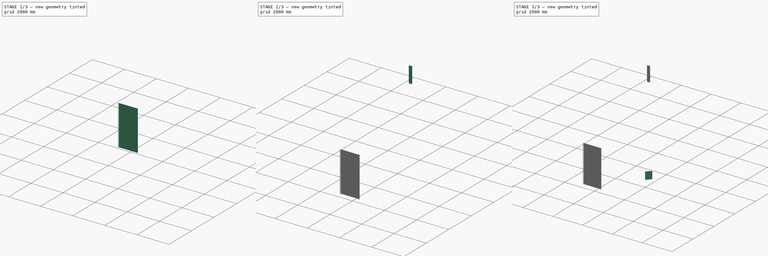
[diagram: build sequence overview — one tinted view per stage of 3, left to right]
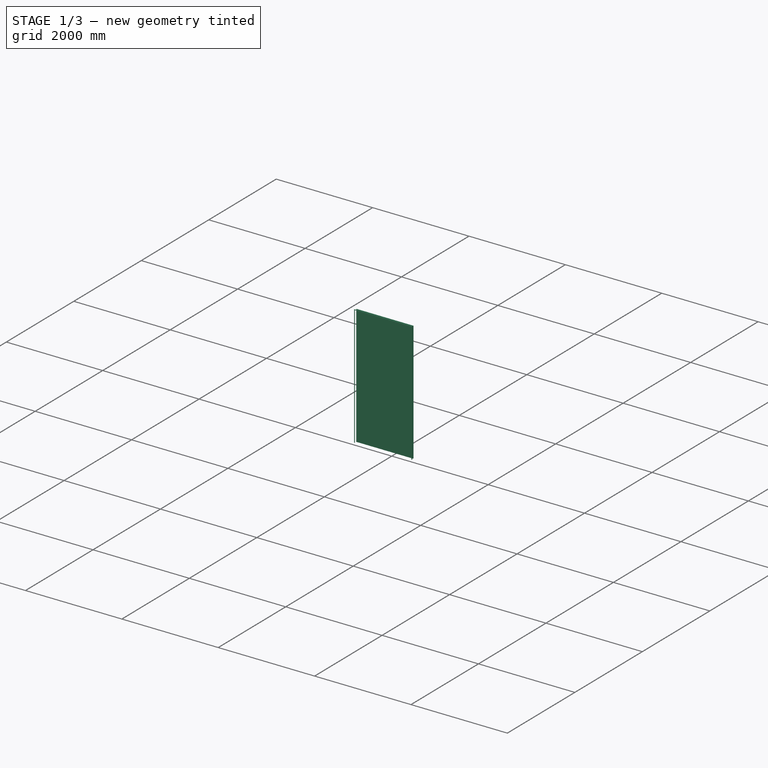
[diagram: stage 1 of 3 — iso view after this stage's code; geometry added in this stage tinted green]
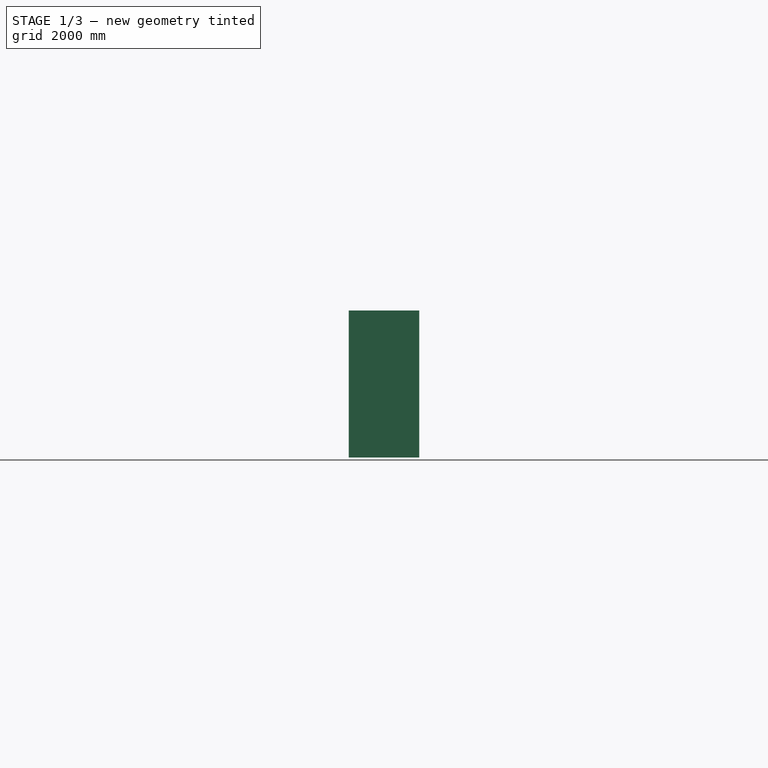
[diagram: stage 1 of 3 — front view after this stage's code; geometry added in this stage tinted green]
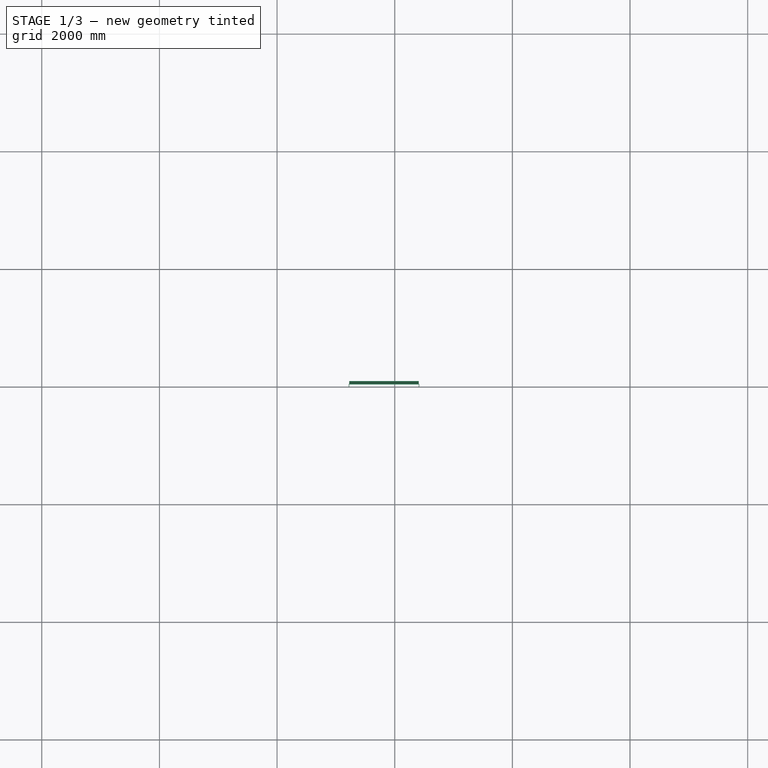
[diagram: stage 1 of 3 — top view after this stage's code; geometry added in this stage tinted green]
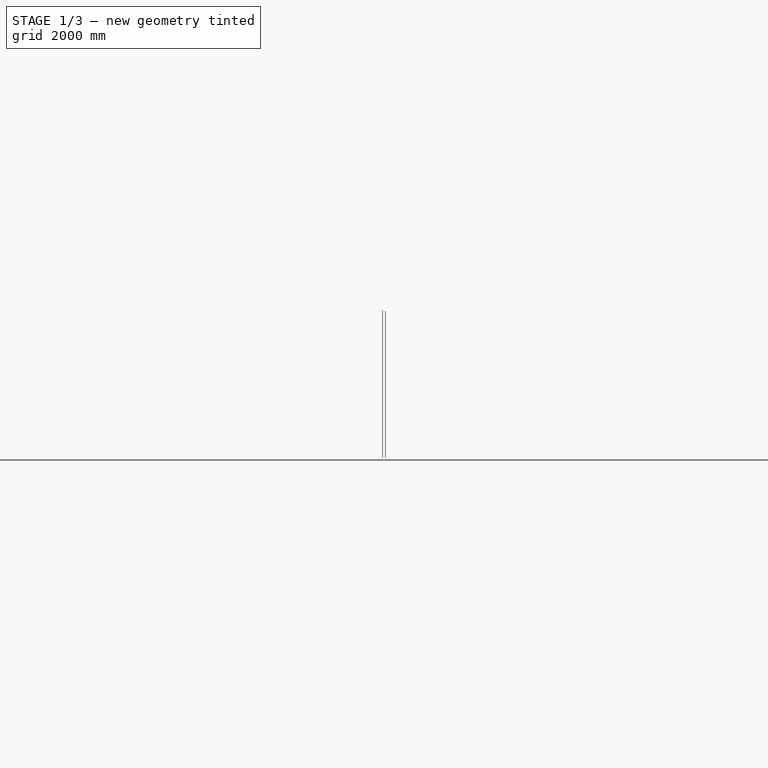
[diagram: stage 1 of 3 — right view after this stage's code; geometry added in this stage tinted green]
FCSTD DOCUMENT  (FreeCAD 0.22R36526 (Git))
Label: window_demo
License: All rights reserved
LicenseURL: https://en.wikipedia.org/wiki/All_rights_reserved
objects: Sketcher::SketchObject×11, Part::FeaturePython×6, App::DocumentObjectGroup×2, Spreadsheet::Sheet×1
note: 17 computed .brp shape members not serialized (recipe doc carries the construction recipe); baked Part::Feature solids carry a one-line shape summary decoded from their .brp

FEATURE [Sketcher::SketchObject] Sketch  label="masterlayout"
  FullyConstrained = false
  sketch-geometry (6):
    g0: LineSegment StartX=0 StartY=0 StartZ=0 EndX=4717.66 EndY=0 EndZ=0
    g1: LineSegment StartX=4717.66 StartY=0 StartZ=0 EndX=8043.77 EndY=3599.89 EndZ=0
    g2: LineSegment StartX=8043.77 StartY=3599.89 StartZ=0 EndX=8043.77 EndY=11196.8 EndZ=0
    g3: LineSegment StartX=8043.77 StartY=11196.8 StartZ=0 EndX=-3326.11 EndY=11196.8 EndZ=0
    g4: LineSegment StartX=-3326.11 StartY=11196.8 StartZ=0 EndX=-3326.11 EndY=3599.89 EndZ=0
    g5: LineSegment StartX=-3326.11 StartY=3599.89 StartZ=0 EndX=0 EndY=0 EndZ=0
  constraints (13):
    c: Coincident(g0,g-1)
    c: Horizontal(g0)
    c: Coincident(g1,g0)
    c: Coincident(g2,g1)
    c: Vertical(g2)
    c: Coincident(g3,g2)
    c: Horizontal(g3)
    c: Coincident(g4,g3)
    c: Vertical(g4)
    c: Coincident(g5,g4)
    c: Coincident(g5,g0)
    c: Equal(g1,g5)
    c: Equal(g4,g2)
FEATURE [Sketcher::SketchObject] Sketch001  label="wall_based_on_master"
  ExternalGeometry = -> [Sketch]
  FullyConstrained = true
  MapMode = 2
  sketch-geometry (1):
    g0: LineSegment StartX=0 StartY=0 StartZ=0 EndX=4717.66 EndY=0 EndZ=0
  constraints (2):
    c: Coincident(g0,g-3)
    c: Coincident(g0,g-3)
FEATURE [Part::FeaturePython] Wall  label="front_wall"  # Arch/BIM 166 (typed FeaturePython)
  Align = 2
  Area = 1.4153e+07
  Base = -> Sketch001
  BlockHeight = 0
  BlockLength = 0
  CountBroken = 0
  CountEntire = 0
  Face = 0
  Height = 3000
  HorizontalArea = 943532
  IfcData = attributes={"GlobalId": {"name": "GlobalId", "type": "IfcGloballyUniqueId", "is_enum": false, "enum_values": []}, "Description": {"... (+533 chars omitted),+1 more (map truncated)
  IfcType = 166
  Joint = 0
  Length = 4717.66
  MakeBlocks = false
  MoveBase = false
  MoveWithHost = false
  Normal = (0,0,1)
  OffsetFirst = 0
  OffsetSecond = 0
  PerimeterLength = 9835.32
  PredefinedType = 0
  VerticalArea = 2.4506e+07
  Width = 200
FEATURE [Sketcher::SketchObject] Sketch068
  FullyConstrained = true
  Placement = pos=(3217.66,0,0) rot=(1,0,0;1.5708rad)
  sketch-geometry (8):
    g0: LineSegment StartX=0 StartY=0 StartZ=0 EndX=1200 EndY=0 EndZ=0
    g1: LineSegment StartX=1200 StartY=0 StartZ=0 EndX=1200 EndY=2500 EndZ=0
    g2: LineSegment StartX=1200 StartY=2500 StartZ=0 EndX=0 EndY=2500 EndZ=0
    g3: LineSegment StartX=0 StartY=2500 StartZ=0 EndX=0 EndY=0 EndZ=0
    g4: LineSegment StartX=10 StartY=0 StartZ=0 EndX=1190 EndY=0 EndZ=0
    g5: LineSegment StartX=1190 StartY=0 StartZ=0 EndX=1190 EndY=2490 EndZ=0
    g6: LineSegment StartX=1190 StartY=2490 StartZ=0 EndX=10 EndY=2490 EndZ=0
    g7: LineSegment StartX=10 StartY=2490 StartZ=0 EndX=10 EndY=0 EndZ=0
  constraints (23):
    c: Coincident(g0,g1)
    c: Coincident(g1,g2)
    c: Coincident(g2,g3)
    c: Coincident(g3,g0)
    c: Horizontal(g0)
    c: Horizontal(g2)
    c: Vertical(g1)
    c: Vertical(g3)
    c: Coincident(g4,g5)
    c: Coincident(g5,g6)
    c: Coincident(g6,g7)
    c: Coincident(g7,g4)
    c: Horizontal(g4)
    c: Horizontal(g6)
    c: Vertical(g5)
    c: Vertical(g7)
    c: DistanceY(g1) = 2500  'Height'
    c: DistanceX(g0) = 1200  'Width'
    c: DistanceY(g6,g2) = 10  'Frame1'
    c: DistanceX(g2,g6) = 10  'Frame2'
    c: DistanceX(g4,g0) = 10  'Frame3'
    c: DistanceY(g0,g4) = 0
    c: Coincident(g0,g-1)
FEATURE [Part::FeaturePython] Window010  label="gen_op_front_wall_1"  # Arch/BIM 41 (typed FeaturePython)
  Area = 3000000
  Base = -> Sketch068
  Frame = 10
  Height = 2500
  HoleDepth = 0
  HoleWire = 0
  HorizontalArea = 0
  Hosts = -> [Wall]
  IfcData = attributes={"GlobalId": {"name": "GlobalId", "type": "IfcGloballyUniqueId", "is_enum": false, "enum_values": []}, "Description": {"... (+1934 chars omitted),+1 more (map truncated)
  IfcType = 41
  LouvreSpacing = 0
  LouvreWidth = 0
  MoveBase = false
  MoveWithHost = true
  Normal = (0,1,-2e-16)
  Opening = 0
  OperationType = 0
  OverallHeight = 2500
  OverallWidth = 1200
  PerimeterLength = 0
  PredefinedType = 0
  Preset = 6
  SymbolElevation = false
  SymbolPlan = false
  VerticalArea = 0
  Width = 1200
  WindowParts = OuterFrame | Frame | Wire0,Wire1 | 0.0+V | 0.00+V | Door | Solid panel | Wire1,Edge8,Mode1 | 10.0 | 50.0+V
  expr: OverallHeight = .Height.Value
  expr: OverallWidth = .Width.Value
FEATURE [App::DocumentObjectGroup] Group001  label="generated_openings"
  Group = -> [Window,Window009,Window010]
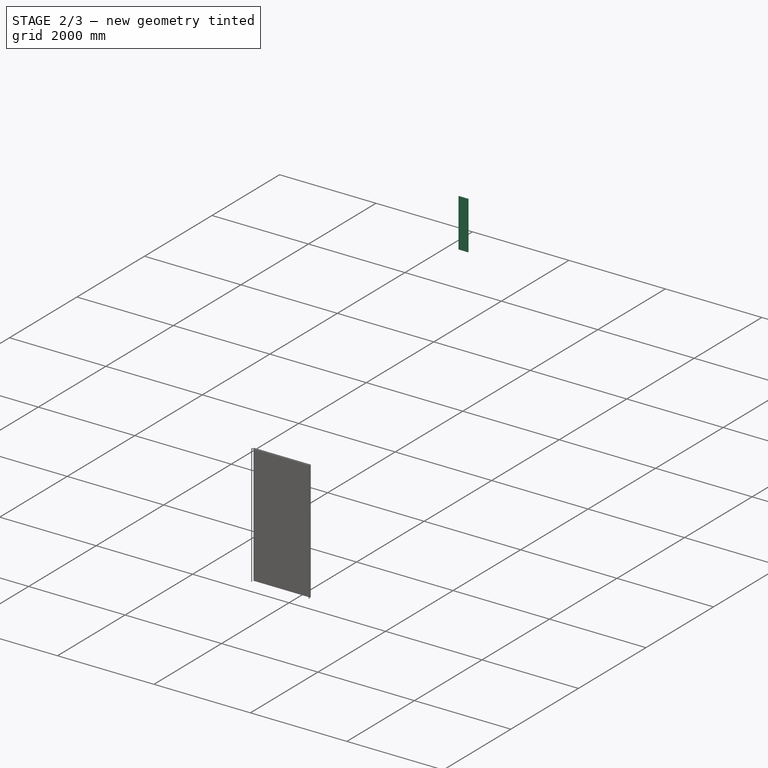
[diagram: stage 2 of 3 — iso view after this stage's code; geometry added in this stage tinted green]
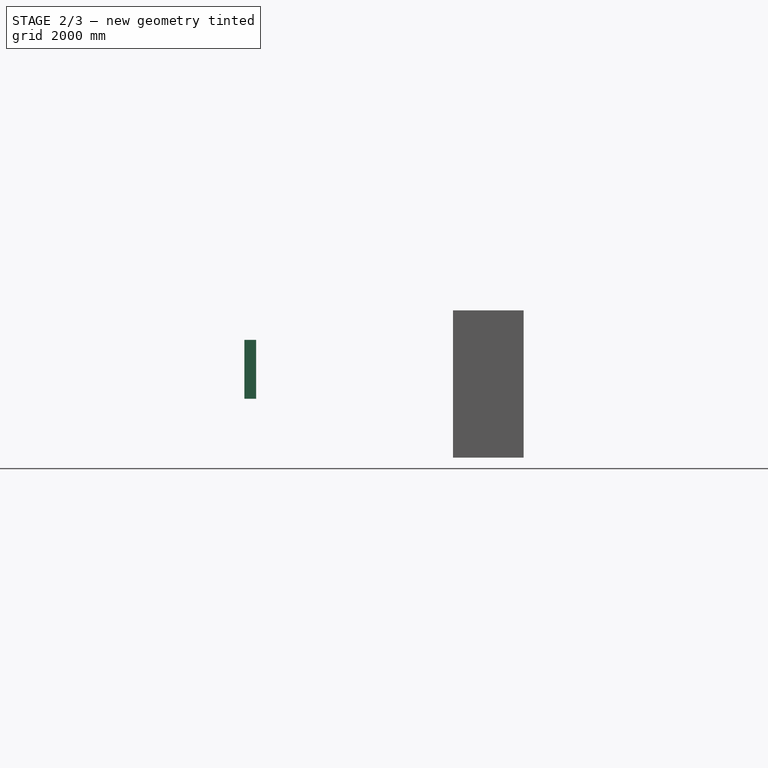
[diagram: stage 2 of 3 — front view after this stage's code; geometry added in this stage tinted green]
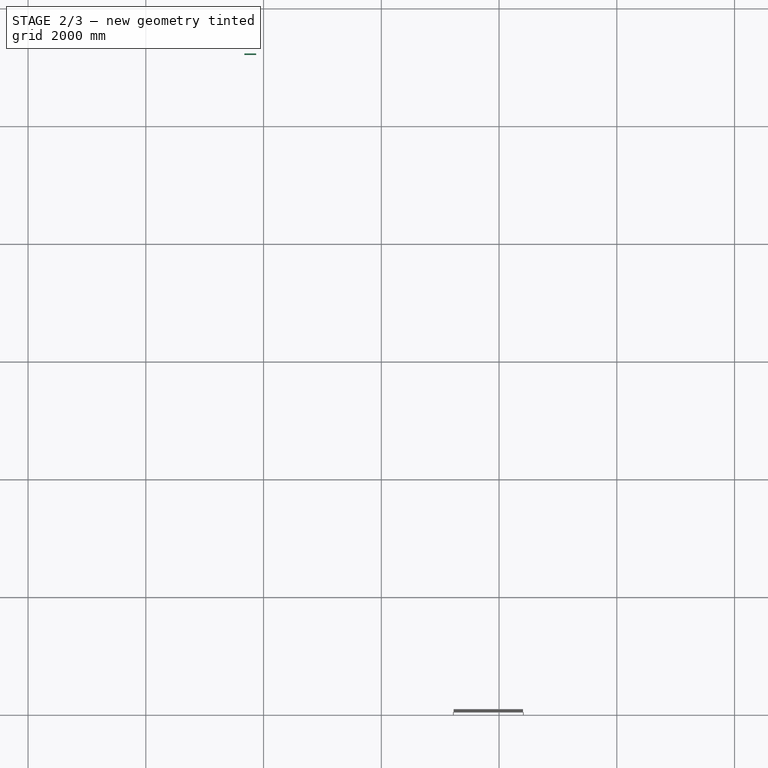
[diagram: stage 2 of 3 — top view after this stage's code; geometry added in this stage tinted green]
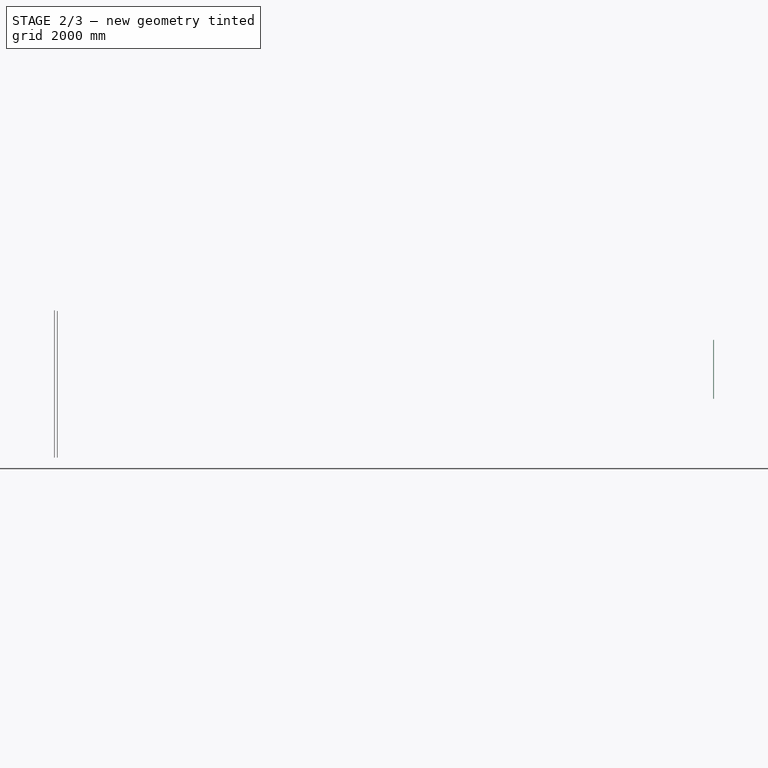
[diagram: stage 2 of 3 — right view after this stage's code; geometry added in this stage tinted green]
FEATURE [Sketcher::SketchObject] Sketch004  label="op_front_wall_1"
  ExternalGeometry = -> [Sketch001]
  FullyConstrained = true
  MapMode = 2
  expr: Constraints[5] = 0.5 * <<front_wall>>.Width
  sketch-geometry (3):
    g0: LineSegment StartX=4717.66 StartY=0 StartZ=0 EndX=3217.66 EndY=0 EndZ=0
    g1: LineSegment StartX=3217.66 StartY=0 StartZ=0 EndX=3217.66 EndY=-100 EndZ=0
    g2: GeomPoint X=3217.66 Y=-100 Z=0
  constraints (7):
    c: PointOnObject(g0,g-1)
    c: DistanceX(g0,g0) = 1500  'op_front_wall_1'
    c: Coincident(g1,g0)
    c: Vertical(g1)
    c: Coincident(g2,g1)
    c: DistanceY(g1,g1) = 100
    c: Coincident(g-3,g0)
FEATURE [Spreadsheet::Sheet] Spreadsheet  label="sc_openings"
  cells = A1='opening_name; B1='host_object; C1='z; D1='Preset; E1='Width; F1='Height; G1='h1; H1='h2; I1='h3; J1='w1; K1='w2; L1='o1; M1='o2; A2(op_front_wall_1)='op_front_wall_1; B2='front_wall; C2=0; D2='Simple door; E2==1200 mm; F2==2500 mm; G2==10 mm; H2==40 mm; I2==50 mm; J2==10 mm; K2==50 mm; L2==0 mm; M2==50 mm; A3(op_front_wall_2)='op_front_wall_2; C3=0; D3='Fixed; E3==400 mm; F3==500 mm; G3==10 mm; H3==40 mm; I3==50 mm; J3==10 mm; K3==50 mm; L3==0 mm; M3==50 mm; A4(op_back_wall_1)='op_back_wall_1; C4==1 m; D4='Fixed; E4==200 mm; F4==1000 mm; G4==10 mm; H4==40 mm; I4==50 mm; J4==10 mm; K4==50 mm; L4==0 mm; M4==50 mm; A5(op_diagonal)='op_diagonal; B5='diagonal_wall; C5==500 mm; D5='Fixed; E5==400 mm; F5==500 mm; G5==10 mm; H5==40 mm; I5==50 mm; J5==10 mm; K5==50 mm; L5==0 mm; M5==50 mm
FEATURE [Sketcher::SketchObject] Sketch008  label="op_front_wall_2"
  ExternalGeometry = -> [Sketch001]
  FullyConstrained = true
  expr: Constraints[5] = 0.5 * <<front_wall>>.Width
  sketch-geometry (3):
    g0: LineSegment StartX=4717.66 StartY=0 StartZ=0 EndX=717.661 EndY=0 EndZ=0
    g1: LineSegment StartX=717.661 StartY=0 StartZ=0 EndX=717.661 EndY=100 EndZ=0
    g2: GeomPoint X=717.661 Y=100 Z=0
  constraints (7):
    c: Coincident(g0,g-3)
    c: PointOnObject(g0,g-3)
    c: Coincident(g1,g0)
    c: Vertical(g1)
    c: DistanceX(g0,g0) = 4000
    c: Distance(g1,g1) = 100
    c: Coincident(g2,g1)
FEATURE [Sketcher::SketchObject] Sketch027  label="back_wall"
  ExternalGeometry = -> [Sketch]
  FullyConstrained = true
  sketch-geometry (3):
    g0: LineSegment StartX=-3326.11 StartY=11196.8 StartZ=0 EndX=8043.77 EndY=11196.8 EndZ=0
    g1: LineSegment StartX=8043.77 StartY=11196.8 StartZ=0 EndX=7043.77 EndY=11196.8 EndZ=0
    g2: LineSegment StartX=7043.77 StartY=11196.8 StartZ=0 EndX=4043.77 EndY=11196.8 EndZ=0
  constraints (8):
    c: Coincident(g0,g-3)
    c: Coincident(g0,g-3)
    c: Coincident(g1,g0)
    c: PointOnObject(g1,g0)
    c: Coincident(g2,g1)
    c: PointOnObject(g2,g0)
    c: DistanceX(g2,g2) = 3000  'op_back_wall_1'
    c: DistanceX(g1,g1) = 1000
FEATURE [Part::FeaturePython] Wall001  label="Wall"  # Arch/BIM 166 (typed FeaturePython)
  Align = 2
  Area = 3.41096e+07
  Base = -> Sketch027
  BlockHeight = 0
  BlockLength = 0
  CountBroken = 0
  CountEntire = 0
  Face = 0
  Height = 3000
  HorizontalArea = 2.31397e+06
  IfcData = attributes={"GlobalId": {"name": "GlobalId", "type": "IfcGloballyUniqueId", "is_enum": false, "enum_values": []}, "Description": {"... (+533 chars omitted),+1 more (map truncated)
  IfcType = 166
  Joint = 0
  Length = 11369.9
  MakeBlocks = false
  MoveBase = false
  MoveWithHost = false
  Normal = (0,0,0)
  OffsetFirst = 0
  OffsetSecond = 0
  PerimeterLength = 23139.7
  PredefinedType = 0
  VerticalArea = 6.94192e+07
  Width = 200
FEATURE [Sketcher::SketchObject] Sketch067
  FullyConstrained = true
  Placement = pos=(-326.105,11196.8,1000) rot=(1,0,0;1.5708rad)
  sketch-geometry (8):
    g0: LineSegment StartX=0 StartY=0 StartZ=0 EndX=200 EndY=0 EndZ=0
    g1: LineSegment StartX=200 StartY=0 StartZ=0 EndX=200 EndY=1000 EndZ=0
    g2: LineSegment StartX=200 StartY=1000 StartZ=0 EndX=0 EndY=1000 EndZ=0
    g3: LineSegment StartX=0 StartY=1000 StartZ=0 EndX=0 EndY=0 EndZ=0
    g4: LineSegment StartX=10 StartY=10 StartZ=0 EndX=190 EndY=10 EndZ=0
    g5: LineSegment StartX=190 StartY=10 StartZ=0 EndX=190 EndY=990 EndZ=0
    g6: LineSegment StartX=190 StartY=990 StartZ=0 EndX=10 EndY=990 EndZ=0
    g7: LineSegment StartX=10 StartY=990 StartZ=0 EndX=10 EndY=10 EndZ=0
  constraints (23):
    c: Coincident(g0,g1)
    c: Coincident(g1,g2)
    c: Coincident(g2,g3)
    c: Coincident(g3,g0)
    c: Horizontal(g0)
    c: Horizontal(g2)
    c: Vertical(g1)
    c: Vertical(g3)
    c: Coincident(g4,g5)
    c: Coincident(g5,g6)
    c: Coincident(g6,g7)
    c: Coincident(g7,g4)
    c: Horizontal(g4)
    c: Horizontal(g6)
    c: Vertical(g5)
    c: Vertical(g7)
    c: DistanceY(g1) = 1000  'Height'
    c: DistanceX(g0) = 200  'Width'
    c: DistanceY(g6,g2) = 10  'Frame1'
    c: DistanceX(g2,g6) = 10  'Frame2'
    c: DistanceX(g4,g0) = 10  'Frame3'
    c: DistanceY(g0,g4) = 10  'Frame4'
    c: Coincident(g0,g-1)
FEATURE [Part::FeaturePython] Window009  label="gen_op_back_wall_1"  # Arch/BIM 170 (typed FeaturePython)
  Area = 200000
  Base = -> Sketch067
  Frame = 10
  Height = 1000
  HoleDepth = 0
  HoleWire = 0
  HorizontalArea = 0
  Hosts = -> [Wall001]
  IfcData = attributes={"GlobalId": {"name": "GlobalId", "type": "IfcGloballyUniqueId", "is_enum": false, "enum_values": []}, "Description": {"... (+1230 chars omitted),+1 more (map truncated)
  IfcType = 170
  LouvreSpacing = 0
  LouvreWidth = 0
  MoveBase = false
  MoveWithHost = true
  Normal = (0,1,-2e-16)
  Opening = 0
  OverallHeight = 1000
  OverallWidth = 200
  PartitioningType = 0
  PerimeterLength = 0
  PredefinedType = 0
  Preset = 1
  SymbolElevation = false
  SymbolPlan = false
  VerticalArea = 0
  Width = 200
  WindowParts = OuterFrame | Frame | Wire0,Wire1 | 0.0+V | 0.00+V | Glass | Glass panel | Wire1 | 1.0 | 5.0+V
  expr: OverallHeight = .Height.Value
  expr: OverallWidth = .Width.Value
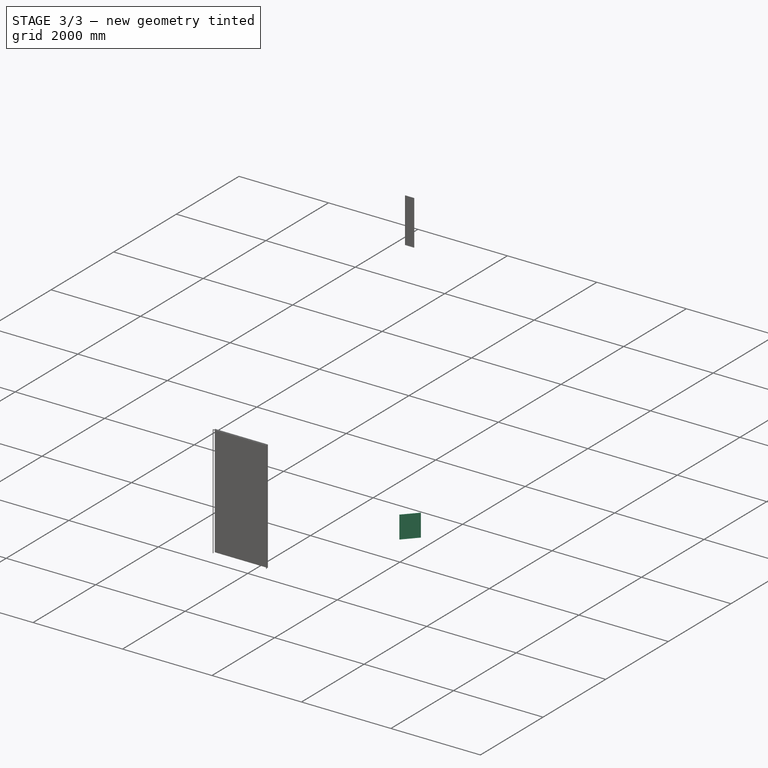
[diagram: stage 3 of 3 — iso view after this stage's code; geometry added in this stage tinted green]
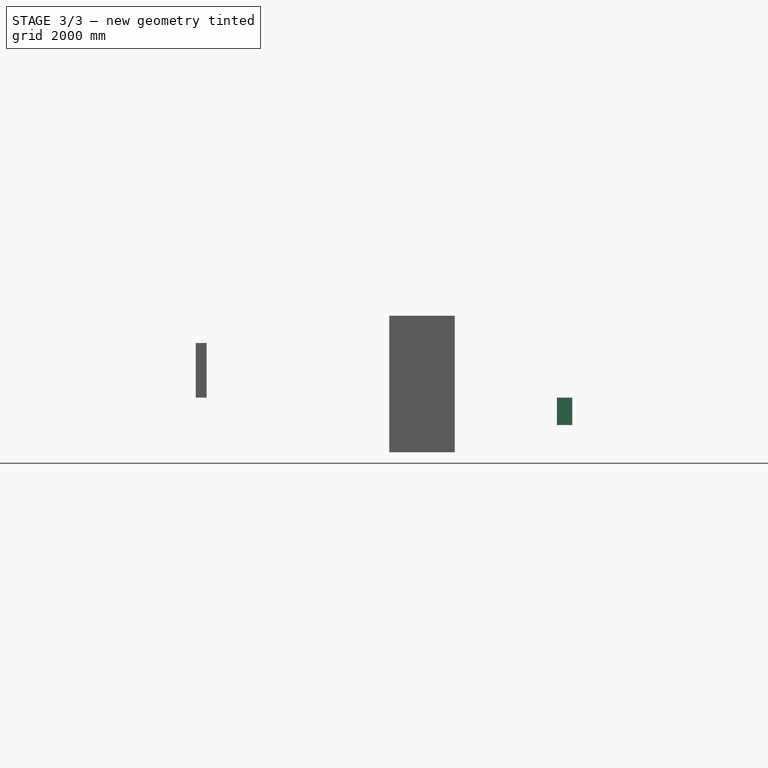
[diagram: stage 3 of 3 — front view after this stage's code; geometry added in this stage tinted green]
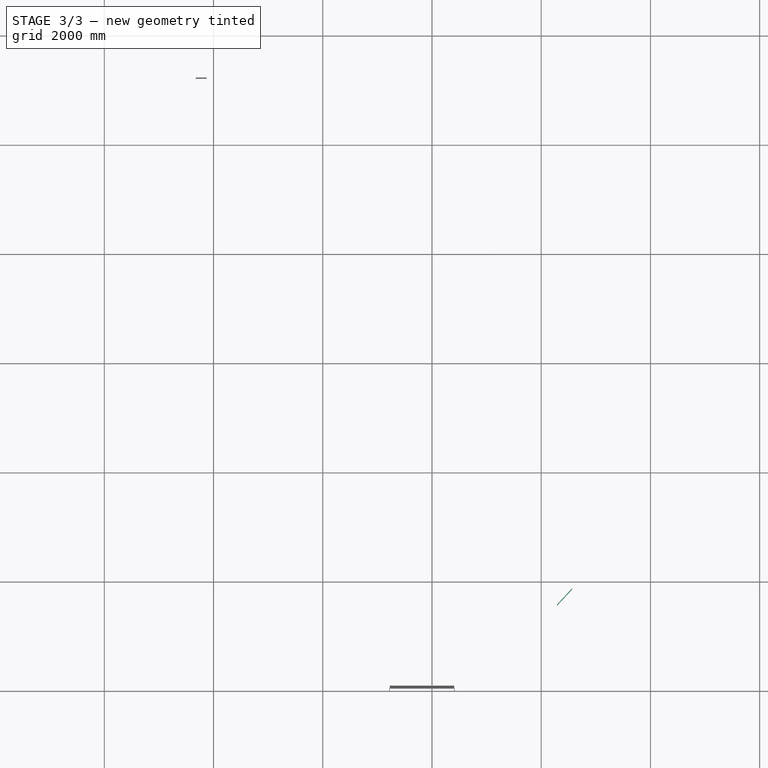
[diagram: stage 3 of 3 — top view after this stage's code; geometry added in this stage tinted green]
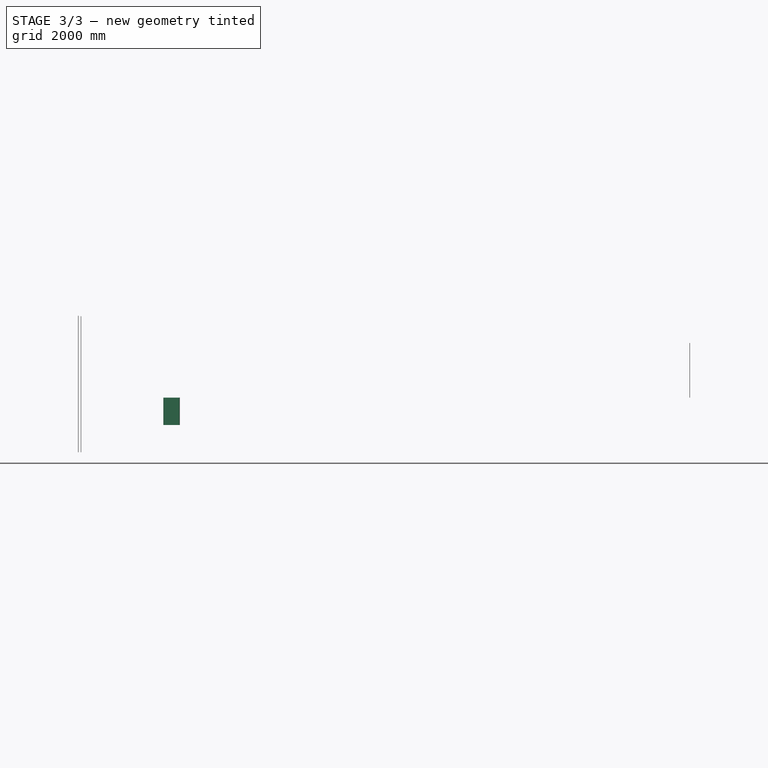
[diagram: stage 3 of 3 — right view after this stage's code; geometry added in this stage tinted green]
FEATURE [Sketcher::SketchObject] Sketch028  label="op_back_wall_1"
  ExternalGeometry = -> [Sketch027]
  FullyConstrained = true
  sketch-geometry (2):
    g0: LineSegment StartX=-3326.11 StartY=11196.8 StartZ=0 EndX=-326.105 EndY=11196.8 EndZ=0
    g1: GeomPoint X=-326.105 Y=11196.8 Z=0
  constraints (4):
    c: Coincident(g1,g0)
    c: DistanceX(g0,g0) = 3000  'op_back_wall_1'
    c: Coincident(g-3,g0)
    c: Horizontal(g0)
FEATURE [Sketcher::SketchObject] Sketch042  label="diagonal"
  AttachmentSupport = -> [Sketch]
  ExternalGeometry = -> [Sketch]
  FullyConstrained = true
  MapMode = 2
  sketch-geometry (1):
    g0: LineSegment StartX=4717.66 StartY=0 StartZ=0 EndX=8043.77 EndY=3599.89 EndZ=0
  constraints (2):
    c: Coincident(g0,g-3)
    c: Coincident(g0,g-3)
FEATURE [Sketcher::SketchObject] Sketch043  label="op_diagonal"
  ExternalGeometry = -> [Sketch]
  FullyConstrained = true
  expr: Constraints[1] = 0.5 * Wall002.Width
  sketch-geometry (2):
    g0: LineSegment StartX=4717.66 StartY=0 StartZ=0 EndX=4791.11 EndY=-67.8625 EndZ=0
    g1: LineSegment StartX=4791.11 StartY=-67.8625 StartZ=0 EndX=6297.72 EndY=1562.77 EndZ=0
  constraints (6):
    c: Perpendicular(g0,g-3)
    c: Distance(g0,g0) = 100
    c: Coincident(g0,g-3)
    c: Coincident(g1,g0)
    c: Perpendicular(g1,g0)
    c: Distance(g1,g1) = 2220.1  'op_diagonal'
FEATURE [App::DocumentObjectGroup] Group  label="openings"
  Group = -> [Sketch043,Sketch028,Sketch004]
FEATURE [Part::FeaturePython] Wall002  label="diagonal_wall"  # Arch/BIM 166 (typed FeaturePython)
  Align = 2
  Area = 1.47037e+07
  Base = -> Sketch042
  BlockHeight = 0
  BlockLength = 0
  CountBroken = 0
  CountEntire = 0
  Face = 0
  Height = 3000
  HorizontalArea = 1.06025e+06
  IfcData = attributes={"GlobalId": {"name": "GlobalId", "type": "IfcGloballyUniqueId", "is_enum": false, "enum_values": []}, "Description": {"... (+533 chars omitted),+1 more (map truncated)
  IfcType = 166
  Joint = 0
  Length = 4901.24
  MakeBlocks = false
  MoveBase = false
  MoveWithHost = false
  Normal = (0,0,0)
  OffsetFirst = 0
  OffsetSecond = 0
  PerimeterLength = 10202.5
  PredefinedType = 0
  VerticalArea = 3.04075e+07
  Width = 200
FEATURE [Sketcher::SketchObject] Sketch066
  FullyConstrained = true
  Placement = pos=(6297.72,1562.77,500) rot=(1,0,0;1.5708rad)
  sketch-geometry (8):
    g0: LineSegment StartX=0 StartY=0 StartZ=0 EndX=400 EndY=0 EndZ=0
    g1: LineSegment StartX=400 StartY=0 StartZ=0 EndX=400 EndY=500 EndZ=0
    g2: LineSegment StartX=400 StartY=500 StartZ=0 EndX=0 EndY=500 EndZ=0
    g3: LineSegment StartX=0 StartY=500 StartZ=0 EndX=0 EndY=0 EndZ=0
    g4: LineSegment StartX=10 StartY=10 StartZ=0 EndX=390 EndY=10 EndZ=0
    g5: LineSegment StartX=390 StartY=10 StartZ=0 EndX=390 EndY=490 EndZ=0
    g6: LineSegment StartX=390 StartY=490 StartZ=0 EndX=10 EndY=490 EndZ=0
    g7: LineSegment StartX=10 StartY=490 StartZ=0 EndX=10 EndY=10 EndZ=0
  constraints (23):
    c: Coincident(g0,g1)
    c: Coincident(g1,g2)
    c: Coincident(g2,g3)
    c: Coincident(g3,g0)
    c: Horizontal(g0)
    c: Horizontal(g2)
    c: Vertical(g1)
    c: Vertical(g3)
    c: Coincident(g4,g5)
    c: Coincident(g5,g6)
    c: Coincident(g6,g7)
    c: Coincident(g7,g4)
    c: Horizontal(g4)
    c: Horizontal(g6)
    c: Vertical(g5)
    c: Vertical(g7)
    c: DistanceY(g1) = 500  'Height'
    c: DistanceX(g0) = 400  'Width'
    c: DistanceY(g6,g2) = 10  'Frame1'
    c: DistanceX(g2,g6) = 10  'Frame2'
    c: DistanceX(g4,g0) = 10  'Frame3'
    c: DistanceY(g0,g4) = 10  'Frame4'
    c: Coincident(g0,g-1)
FEATURE [Part::FeaturePython] Window  label="gen_op_diagonal"  # Arch/BIM 170 (typed FeaturePython)
  Area = 200000
  Base = -> Sketch066
  Frame = 10
  Height = 500
  HoleDepth = 0
  HoleWire = 0
  HorizontalArea = 0
  Hosts = -> [Wall002]
  IfcData = attributes={"GlobalId": {"name": "GlobalId", "type": "IfcGloballyUniqueId", "is_enum": false, "enum_values": []}, "Description": {"... (+1229 chars omitted),+1 more (map truncated)
  IfcType = 170
  LouvreSpacing = 0
  LouvreWidth = 0
  MoveBase = false
  MoveWithHost = true
  Normal = (0,1,-2e-16)
  Opening = 0
  OverallHeight = 500
  OverallWidth = 400
  PartitioningType = 0
  PerimeterLength = 0
  Placement = pos=(3171.76,-4123.35,0) rot=(0,0,1;0.824908rad)
  PredefinedType = 0
  Preset = 1
  SymbolElevation = false
  SymbolPlan = false
  VerticalArea = 0
  Width = 400
  WindowParts = OuterFrame | Frame | Wire0,Wire1 | 0.0+V | 0.00+V | Glass | Glass panel | Wire1 | 1.0 | 5.0+V
  expr: OverallHeight = .Height.Value
  expr: OverallWidth = .Width.Value
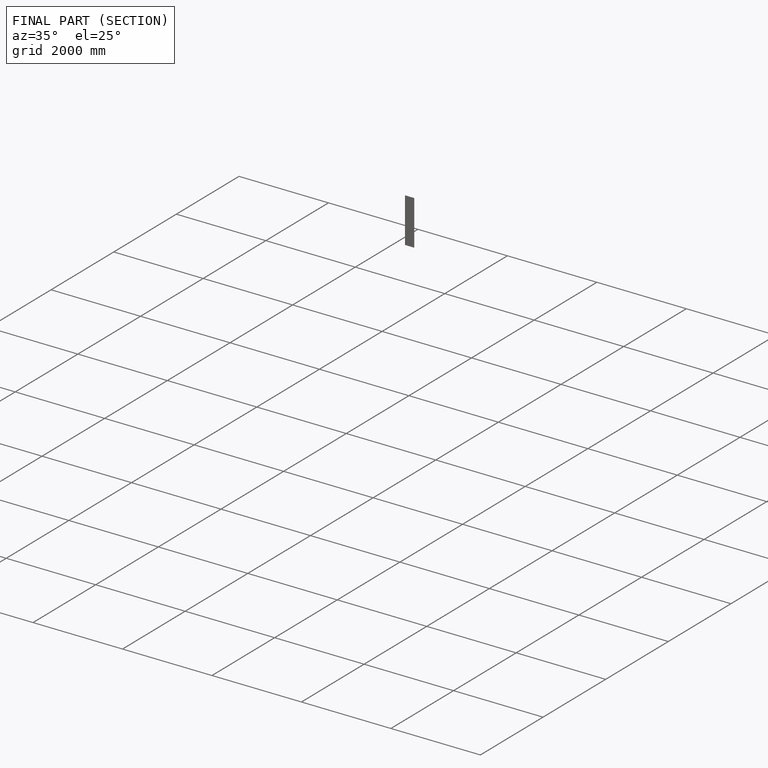
[diagram: finished part — half-section view (interior)]
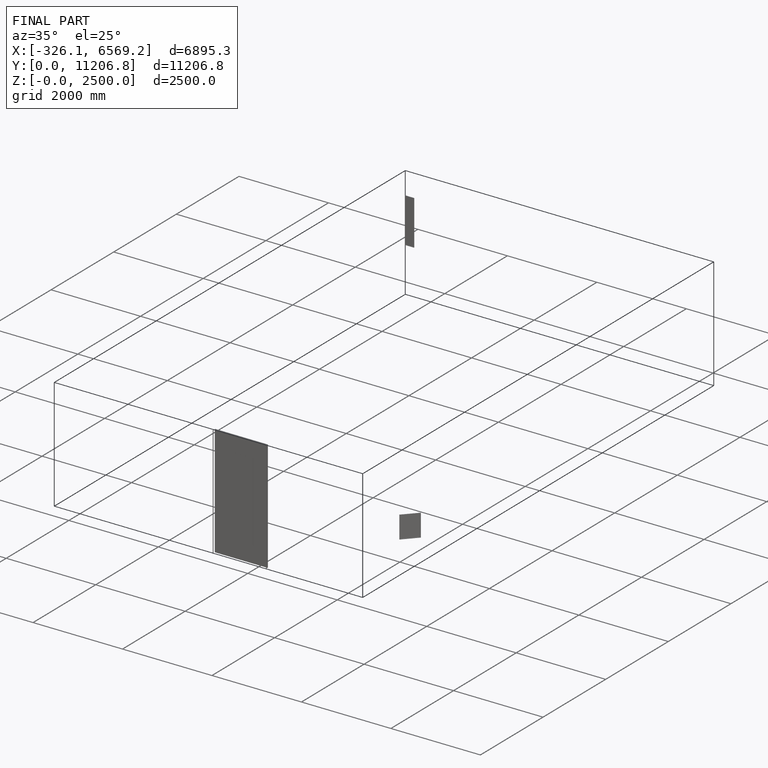
[diagram: finished part — iso view with bounding-box wireframe]
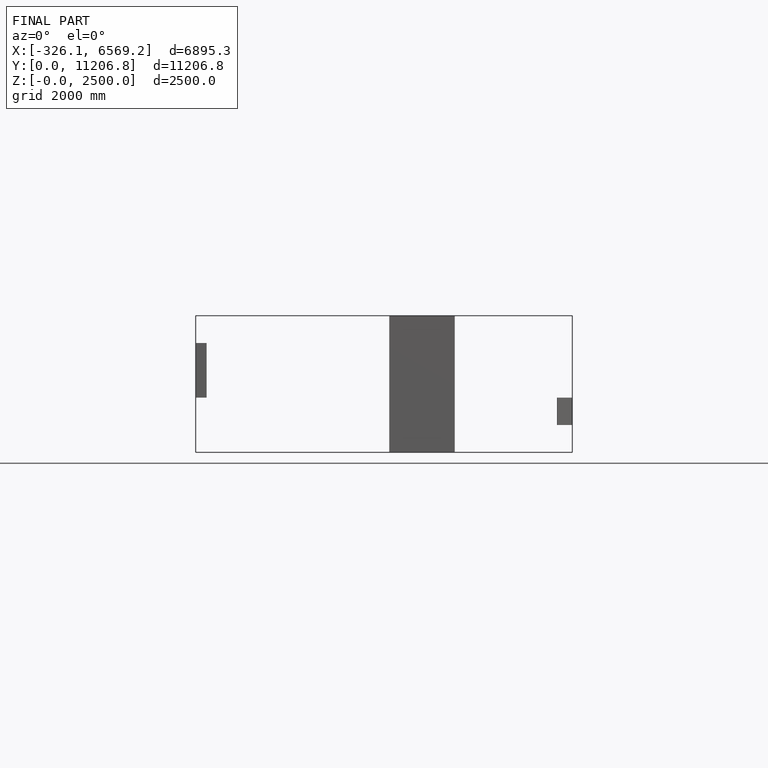
[diagram: finished part — front view with bounding-box wireframe]
